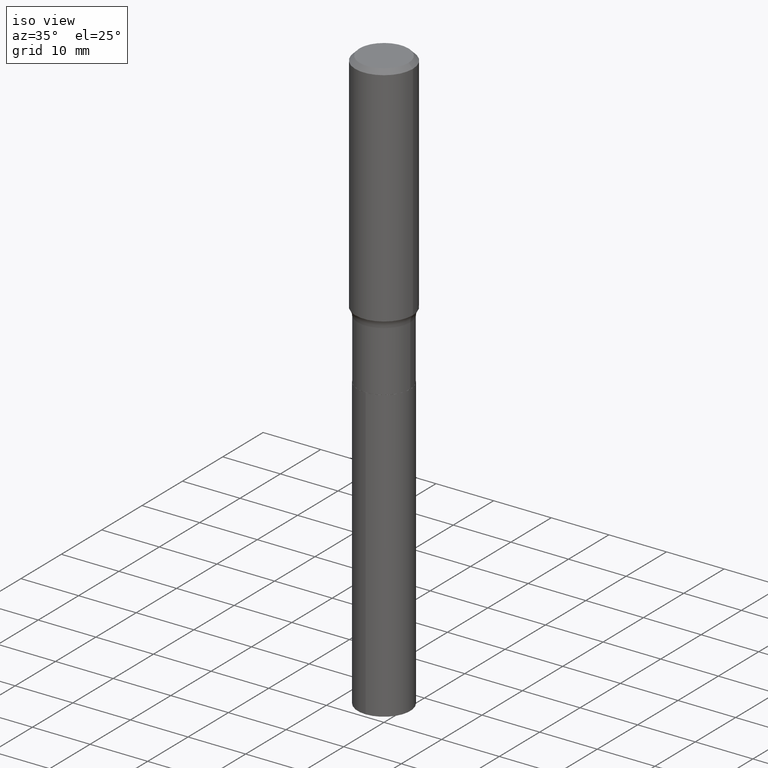
[diagram: clean part render]
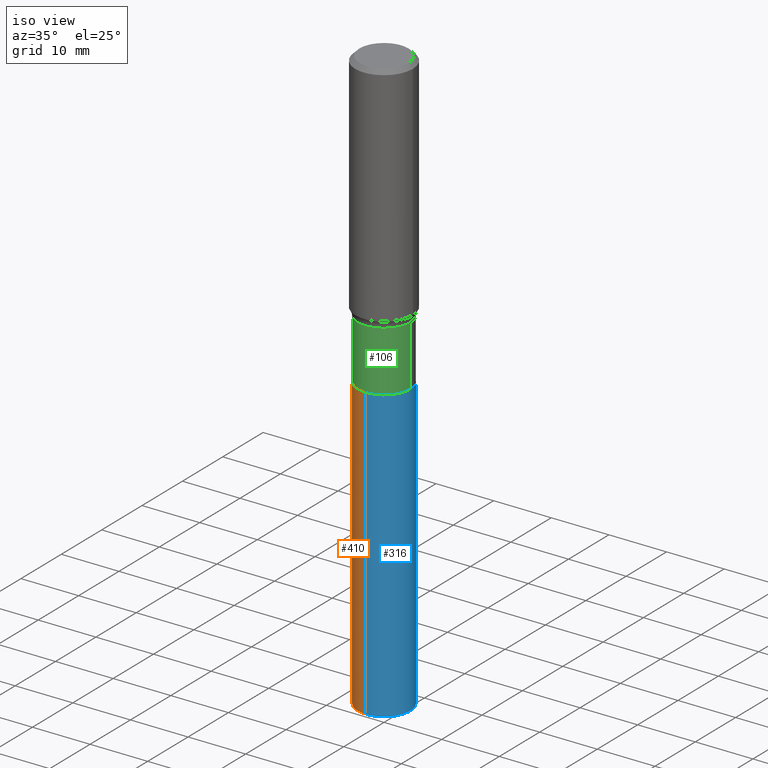
[diagram: same view with three faces highlighted in distinct colors, each labeled with its STEP entity id]
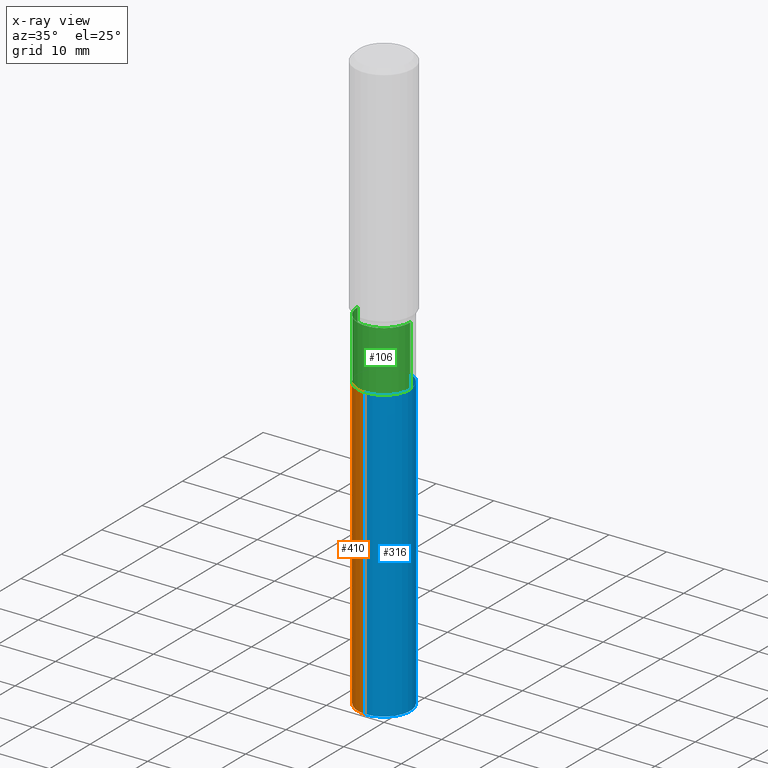
[diagram: x-ray of the same camera — body ghosted, the three highlighted faces saturated]
A machine part, iso view with three faces highlighted in distinct colors.
The next image is the same camera in x-ray (body ghosted, the three faces saturated) — at least one of them is partly hidden behind the body in this view.
Their STEP definitions:

[orange] entity #410 — the highlighted cylindrical surface (edge-blend (fillet) strip) has radius 4.5504 mm, axis along (-0, 0, 1).
#3 = LINE ( 'NONE', #266, #311 ) ;
#67 = CIRCLE ( 'NONE', #119, 0.1791500000000000314 ) ;
#74 = EDGE_LOOP ( 'NONE', ( #344, #115, #466, #426 ) ) ;
#81 = VERTEX_POINT ( 'NONE', #163 ) ;
#91 = VERTEX_POINT ( 'NONE', #93 ) ;
#93 = CARTESIAN_POINT ( 'NONE',  ( 1.272937311114317328E-15, 0.1791499999999929815, -2.011800000000000477 ) ) ;
#100 = DIRECTION ( 'NONE',  ( -2.445553117458370367E-29, 3.491360600301175150E-15, 1.000000000000000000 ) ) ;
#115 = ORIENTED_EDGE ( 'NONE', *, *, #275, .T. ) ;
#119 = AXIS2_PLACEMENT_3D ( 'NONE', #373, #371, #224 ) ;
#146 = FACE_OUTER_BOUND ( 'NONE', #74, .T. ) ;
#163 = CARTESIAN_POINT ( 'NONE',  ( -1.250997763707445513E-15, -0.1791500000000070536, -2.011799999999999145 ) ) ;
#165 = EDGE_CURVE ( 'NONE', #91, #81, #67, .T. ) ;
#172 = CARTESIAN_POINT ( 'NONE',  ( 9.778653858638317059E-29, -1.396084705219686894E-14, -3.998614221972331073 ) ) ;
#176 = CARTESIAN_POINT ( 'NONE',  ( -1.250997763707445513E-15, -0.1791500000000070536, -2.011799999999999145 ) ) ;
#187 = VECTOR ( 'NONE', #372, 39.37007874015748143 ) ;
#223 = CARTESIAN_POINT ( 'NONE',  ( -1.250997763707397393E-15, -0.1791500000000140758, -3.998614221972330629 ) ) ;
#224 = DIRECTION ( 'NONE',  ( -6.982962677686265133E-15, -1.000000000000000000, 3.049788438363675772E-15 ) ) ;
#235 = DIRECTION ( 'NONE',  ( -2.445553117458370367E-29, 3.491360600301175150E-15, 1.000000000000000000 ) ) ;
#266 = CARTESIAN_POINT ( 'NONE',  ( 1.272937311114268616E-15, 0.1791499999999929815, -2.011800000000000477 ) ) ;
#267 = VERTEX_POINT ( 'NONE', #223 ) ;
#275 = EDGE_CURVE ( 'NONE', #302, #267, #486, .T. ) ;
#276 = DIRECTION ( 'NONE',  ( -6.982962677686265133E-15, -1.000000000000000000, 3.049788438363675772E-15 ) ) ;
#283 = AXIS2_PLACEMENT_3D ( 'NONE', #423, #235, #276 ) ;
#302 = VERTEX_POINT ( 'NONE', #442 ) ;
#309 = EDGE_CURVE ( 'NONE', #267, #81, #412, .T. ) ;
#311 = VECTOR ( 'NONE', #425, 39.37007874015748143 ) ;
#344 = ORIENTED_EDGE ( 'NONE', *, *, #458, .F. ) ;
#352 = AXIS2_PLACEMENT_3D ( 'NONE', #172, #100, #414 ) ;
#371 = DIRECTION ( 'NONE',  ( -2.445553117458370367E-29, 3.491360600301175150E-15, 1.000000000000000000 ) ) ;
#372 = DIRECTION ( 'NONE',  ( -2.445553117458370087E-29, 3.491360600301175150E-15, 1.000000000000000000 ) ) ;
#373 = CARTESIAN_POINT ( 'NONE',  ( 4.919794144283257255E-29, -7.024162157484639438E-15, -2.011800000000000033 ) ) ;
#410 = ADVANCED_FACE ( 'NONE', ( #146 ), #420, .T. ) ;
#412 = LINE ( 'NONE', #176, #187 ) ;
#414 = DIRECTION ( 'NONE',  ( -6.982962677686265133E-15, -1.000000000000000000, 3.049788438363675772E-15 ) ) ;
#420 = CYLINDRICAL_SURFACE ( 'NONE', #283, 0.1791500000000000314 ) ;
#423 = CARTESIAN_POINT ( 'NONE',  ( 4.919794144283257255E-29, -7.024162157484639438E-15, -2.011800000000000033 ) ) ;
#425 = DIRECTION ( 'NONE',  ( -2.445553117458370087E-29, 3.491360600301175150E-15, 1.000000000000000000 ) ) ;
#426 = ORIENTED_EDGE ( 'NONE', *, *, #165, .F. ) ;
#442 = CARTESIAN_POINT ( 'NONE',  ( 1.272937311114317920E-15, 0.1791499999999861259, -3.998614221972331517 ) ) ;
#458 = EDGE_CURVE ( 'NONE', #302, #91, #3, .T. ) ;
#466 = ORIENTED_EDGE ( 'NONE', *, *, #309, .T. ) ;
#486 = CIRCLE ( 'NONE', #352, 0.1791500000000000314 ) ;

[blue] entity #316 — the highlighted cylindrical surface (edge-blend (fillet) strip) has radius 4.5504 mm, axis along (-0, 0, 1).
#1 = CIRCLE ( 'NONE', #245, 0.1791500000000000314 ) ;
#3 = LINE ( 'NONE', #266, #311 ) ;
#25 = CYLINDRICAL_SURFACE ( 'NONE', #369, 0.1791500000000000314 ) ;
#71 = EDGE_LOOP ( 'NONE', ( #184, #147, #452, #243 ) ) ;
#81 = VERTEX_POINT ( 'NONE', #163 ) ;
#91 = VERTEX_POINT ( 'NONE', #93 ) ;
#93 = CARTESIAN_POINT ( 'NONE',  ( 1.272937311114317328E-15, 0.1791499999999929815, -2.011800000000000477 ) ) ;
#94 = CARTESIAN_POINT ( 'NONE',  ( 4.919794144283257255E-29, -7.024162157484639438E-15, -2.011800000000000033 ) ) ;
#135 = DIRECTION ( 'NONE',  ( -2.445553117458370367E-29, 3.491360600301175150E-15, 1.000000000000000000 ) ) ;
#147 = ORIENTED_EDGE ( 'NONE', *, *, #458, .T. ) ;
#163 = CARTESIAN_POINT ( 'NONE',  ( -1.250997763707445513E-15, -0.1791500000000070536, -2.011799999999999145 ) ) ;
#164 = DIRECTION ( 'NONE',  ( -6.982962677686265133E-15, -1.000000000000000000, 3.049788438363675772E-15 ) ) ;
#176 = CARTESIAN_POINT ( 'NONE',  ( -1.250997763707445513E-15, -0.1791500000000070536, -2.011799999999999145 ) ) ;
#184 = ORIENTED_EDGE ( 'NONE', *, *, #300, .T. ) ;
#187 = VECTOR ( 'NONE', #372, 39.37007874015748143 ) ;
#209 = DIRECTION ( 'NONE',  ( -2.445553117458370367E-29, 3.491360600301175150E-15, 1.000000000000000000 ) ) ;
#223 = CARTESIAN_POINT ( 'NONE',  ( -1.250997763707397393E-15, -0.1791500000000140758, -3.998614221972330629 ) ) ;
#234 = EDGE_CURVE ( 'NONE', #81, #91, #1, .T. ) ;
#243 = ORIENTED_EDGE ( 'NONE', *, *, #309, .F. ) ;
#245 = AXIS2_PLACEMENT_3D ( 'NONE', #94, #209, #164 ) ;
#247 = AXIS2_PLACEMENT_3D ( 'NONE', #292, #256, #444 ) ;
#256 = DIRECTION ( 'NONE',  ( -2.445553117458370367E-29, 3.491360600301175150E-15, 1.000000000000000000 ) ) ;
#266 = CARTESIAN_POINT ( 'NONE',  ( 1.272937311114268616E-15, 0.1791499999999929815, -2.011800000000000477 ) ) ;
#267 = VERTEX_POINT ( 'NONE', #223 ) ;
#292 = CARTESIAN_POINT ( 'NONE',  ( 9.778653858638317059E-29, -1.396084705219686894E-14, -3.998614221972331073 ) ) ;
#300 = EDGE_CURVE ( 'NONE', #267, #302, #305, .T. ) ;
#302 = VERTEX_POINT ( 'NONE', #442 ) ;
#305 = CIRCLE ( 'NONE', #247, 0.1791500000000000314 ) ;
#309 = EDGE_CURVE ( 'NONE', #267, #81, #412, .T. ) ;
#311 = VECTOR ( 'NONE', #425, 39.37007874015748143 ) ;
#316 = ADVANCED_FACE ( 'NONE', ( #330 ), #25, .T. ) ;
#330 = FACE_OUTER_BOUND ( 'NONE', #71, .T. ) ;
#369 = AXIS2_PLACEMENT_3D ( 'NONE', #483, #135, #474 ) ;
#372 = DIRECTION ( 'NONE',  ( -2.445553117458370087E-29, 3.491360600301175150E-15, 1.000000000000000000 ) ) ;
#412 = LINE ( 'NONE', #176, #187 ) ;
#425 = DIRECTION ( 'NONE',  ( -2.445553117458370087E-29, 3.491360600301175150E-15, 1.000000000000000000 ) ) ;
#442 = CARTESIAN_POINT ( 'NONE',  ( 1.272937311114317920E-15, 0.1791499999999861259, -3.998614221972331517 ) ) ;
#444 = DIRECTION ( 'NONE',  ( -6.982962677686265133E-15, -1.000000000000000000, 3.049788438363675772E-15 ) ) ;
#452 = ORIENTED_EDGE ( 'NONE', *, *, #234, .F. ) ;
#458 = EDGE_CURVE ( 'NONE', #302, #91, #3, .T. ) ;
#474 = DIRECTION ( 'NONE',  ( -6.982962677686265133E-15, -1.000000000000000000, 3.049788438363675772E-15 ) ) ;
#483 = CARTESIAN_POINT ( 'NONE',  ( 4.919794144283257255E-29, -7.024162157484639438E-15, -2.011800000000000033 ) ) ;

[green] entity #106 — the highlighted cylindrical surface (edge-blend (fillet) strip) has radius 4.5504 mm, axis along (-0, 0, 1).
#11 = CIRCLE ( 'NONE', #377, 0.1791499999999999759 ) ;
#31 = CARTESIAN_POINT ( 'NONE',  ( 0.1791500000000000314, -1.250997763707495014E-15, 8.735670693838419573E-30 ) ) ;
#40 = VERTEX_POINT ( 'NONE', #351 ) ;
#62 = DIRECTION ( 'NONE',  ( 1.000000000000000000, -6.982962677686265922E-15, 0.000000000000000000 ) ) ;
#66 = DIRECTION ( 'NONE',  ( 1.000000000000000000, -6.982962677686269866E-15, 0.000000000000000000 ) ) ;
#106 = ADVANCED_FACE ( 'NONE', ( #133 ), #350, .T. ) ;
#110 = AXIS2_PLACEMENT_3D ( 'NONE', #362, #289, #62 ) ;
#121 = DIRECTION ( 'NONE',  ( -2.445468806185136597E-29, 3.491481338843145583E-15, 1.000000000000000000 ) ) ;
#133 = FACE_OUTER_BOUND ( 'NONE', #233, .T. ) ;
#143 = EDGE_CURVE ( 'NONE', #306, #385, #11, .T. ) ;
#150 = DIRECTION ( 'NONE',  ( -2.445468806185136877E-29, 3.491481338843145188E-15, 1.000000000000000000 ) ) ;
#154 = CARTESIAN_POINT ( 'NONE',  ( 0.000000000000000000, 0.000000000000000000, 0.000000000000000000 ) ) ;
#169 = VECTOR ( 'NONE', #150, 39.37007874015748143 ) ;
#170 = EDGE_CURVE ( 'NONE', #40, #385, #484, .T. ) ;
#189 = ORIENTED_EDGE ( 'NONE', *, *, #143, .F. ) ;
#193 = LINE ( 'NONE', #491, #169 ) ;
#219 = DIRECTION ( 'NONE',  ( -2.445468806185136877E-29, 3.491481338843145188E-15, 1.000000000000000000 ) ) ;
#221 = AXIS2_PLACEMENT_3D ( 'NONE', #154, #121, #278 ) ;
#225 = CARTESIAN_POINT ( 'NONE',  ( -0.1791500000000000592, -5.031106820234021505E-15, -2.011299999999999866 ) ) ;
#233 = EDGE_LOOP ( 'NONE', ( #354, #268, #273, #189 ) ) ;
#268 = ORIENTED_EDGE ( 'NONE', *, *, #375, .T. ) ;
#273 = ORIENTED_EDGE ( 'NONE', *, *, #170, .T. ) ;
#278 = DIRECTION ( 'NONE',  ( 1.000000000000000000, -6.982962677686267499E-15, 4.876176775795935232E-29 ) ) ;
#289 = DIRECTION ( 'NONE',  ( -2.445468806185136597E-29, 3.491481338843145583E-15, 1.000000000000000000 ) ) ;
#306 = VERTEX_POINT ( 'NONE', #325 ) ;
#325 = CARTESIAN_POINT ( 'NONE',  ( -0.1791499999999999759, -5.031106820234021505E-15, -1.599800000000000333 ) ) ;
#335 = DIRECTION ( 'NONE',  ( -2.445468806185136597E-29, 3.491481338843145583E-15, 1.000000000000000000 ) ) ;
#350 = CYLINDRICAL_SURFACE ( 'NONE', #221, 0.1791500000000000314 ) ;
#351 = CARTESIAN_POINT ( 'NONE',  ( 0.1791500000000000592, -8.273414180522713146E-15, -2.011299999999999866 ) ) ;
#354 = ORIENTED_EDGE ( 'NONE', *, *, #490, .F. ) ;
#360 = VECTOR ( 'NONE', #219, 39.37007874015748143 ) ;
#361 = CIRCLE ( 'NONE', #110, 0.1791500000000000592 ) ;
#362 = CARTESIAN_POINT ( 'NONE',  ( 4.918571409880165014E-29, -7.022416416815218724E-15, -2.011299999999999866 ) ) ;
#363 = CARTESIAN_POINT ( 'NONE',  ( 0.1791499999999999759, -6.836669609588759700E-15, -1.599800000000000333 ) ) ;
#375 = EDGE_CURVE ( 'NONE', #471, #40, #361, .T. ) ;
#377 = AXIS2_PLACEMENT_3D ( 'NONE', #445, #335, #66 ) ;
#385 = VERTEX_POINT ( 'NONE', #363 ) ;
#445 = CARTESIAN_POINT ( 'NONE',  ( 3.912260996134982219E-29, -5.585671845881265277E-15, -1.599800000000000333 ) ) ;
#471 = VERTEX_POINT ( 'NONE', #225 ) ;
#484 = LINE ( 'NONE', #31, #360 ) ;
#490 = EDGE_CURVE ( 'NONE', #471, #306, #193, .T. ) ;
#491 = CARTESIAN_POINT ( 'NONE',  ( -0.1791500000000000314, 1.272937311114219706E-15, -8.812272214191663486E-30 ) ) ;